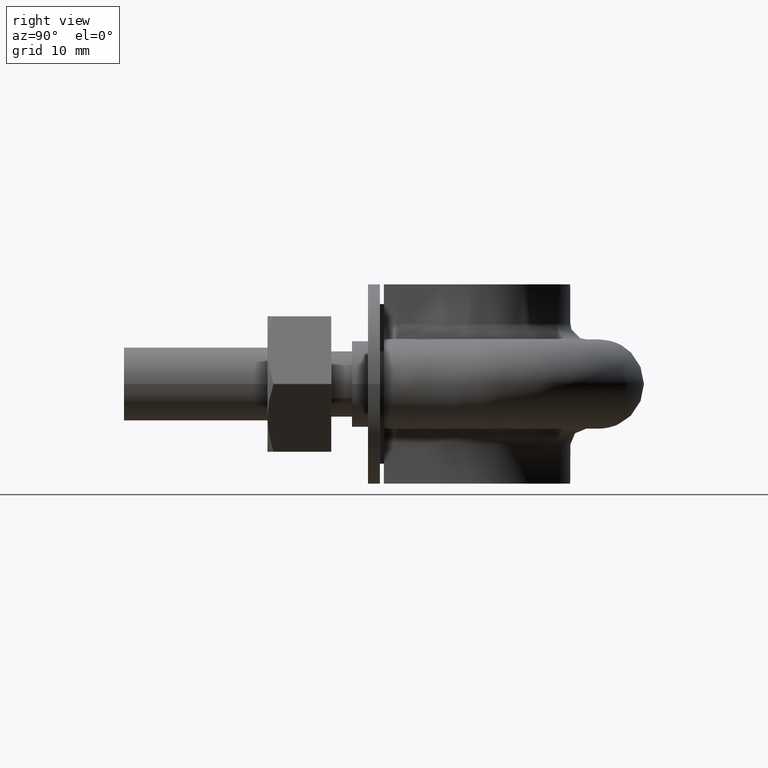
[diagram: clean part render]
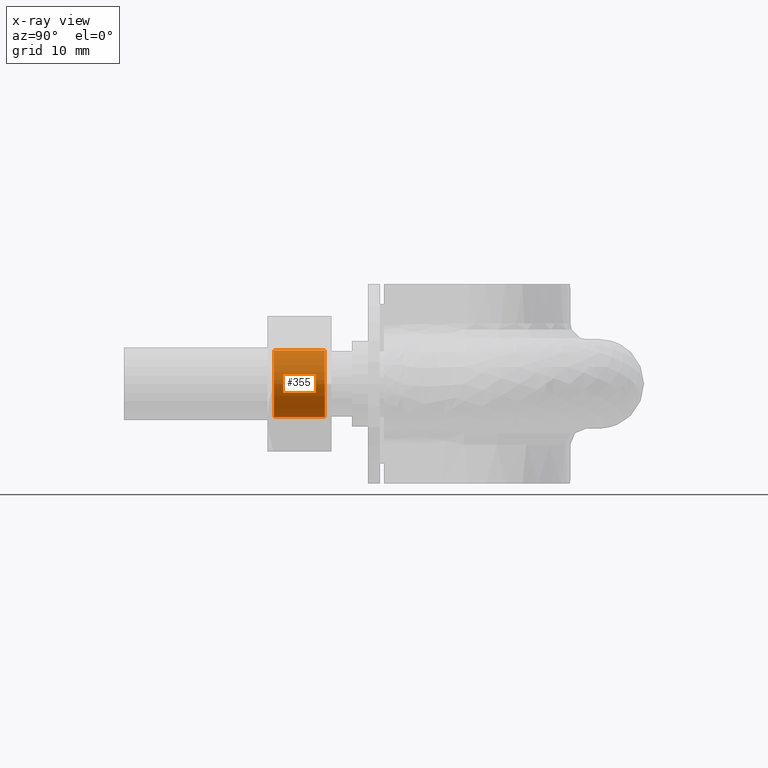
[diagram: x-ray — body ghosted, one internal face saturated and labeled with its STEP entity id]
A machine part, right view, then the same camera in x-ray: the body is ghosted and one INTERNAL B-rep face — a face not visible from any outside direction — is saturated and labeled: STEP entity #355.
In plain terms, the highlighted cylindrical surface (bore or boss wall) has radius 4.188 mm, axis along (-0, -1, 0).
Its self-contained STEP definition (entity closure, byte-faithful):
#355 = ADVANCED_FACE( '', ( #581, #582 ), #583, .F. );
#581 = FACE_OUTER_BOUND( '', #1745, .T. );
#582 = FACE_OUTER_BOUND( '', #1746, .T. );
#583 = CYLINDRICAL_SURFACE( '', #1747, 4.18799999999934 );
#1745 = EDGE_LOOP( '', ( #2446 ) );
#1746 = EDGE_LOOP( '', ( #2447 ) );
#1747 = AXIS2_PLACEMENT_3D( '', #2448, #2449, #2450 );
#2446 = ORIENTED_EDGE( '', *, *, #2816, .T. );
#2447 = ORIENTED_EDGE( '', *, *, #2815, .F. );
#2448 = CARTESIAN_POINT( '', ( -17.0000000000000, 26.0000000000000, -8.10077103053503E-015 ) );
#2449 = DIRECTION( '', ( -2.44921270764476E-016, -1.00000000000000, 3.06151588455594E-016 ) );
#2450 = DIRECTION( '', ( -3.20504273121358E-009, -3.06151587670611E-016, -1.00000000000000 ) );
#2815 = EDGE_CURVE( '', #3177, #3177, #3178, .T. );
#2816 = EDGE_CURVE( '', #3179, #3179, #3180, .T. );
#3177 = VERTEX_POINT( '', #3931 );
#3178 = CIRCLE( '', #3932, 4.18799999999934 );
#3179 = VERTEX_POINT( '', #3933 );
#3180 = CIRCLE( '', #3934, 4.18799999999934 );
#3931 = CARTESIAN_POINT( '', ( -17.0000000134227, 18.8120000000003, -4.18799999999935 ) );
#3932 = AXIS2_PLACEMENT_3D( '', #4371, #4372, #4373 );
#3933 = CARTESIAN_POINT( '', ( -17.0000000134227, 25.1880000000000, -4.18799999999935 ) );
#3934 = AXIS2_PLACEMENT_3D( '', #4374, #4375, #4376 );
#4371 = CARTESIAN_POINT( '', ( -17.0000000000000, 18.8120000000003, -5.90015341271630E-015 ) );
#4372 = DIRECTION( '', ( 2.44921270764476E-016, 1.00000000000000, -3.06151588455594E-016 ) );
#4373 = DIRECTION( '', ( -3.20504273121358E-009, -3.06151587670611E-016, -1.00000000000000 ) );
#4374 = CARTESIAN_POINT( '', ( -17.0000000000000, 25.1880000000000, -7.85217594070909E-015 ) );
#4375 = DIRECTION( '', ( 2.44921270764476E-016, 1.00000000000000, -3.06151588455594E-016 ) );
#4376 = DIRECTION( '', ( -3.20504273121358E-009, -3.06151587670611E-016, -1.00000000000000 ) );